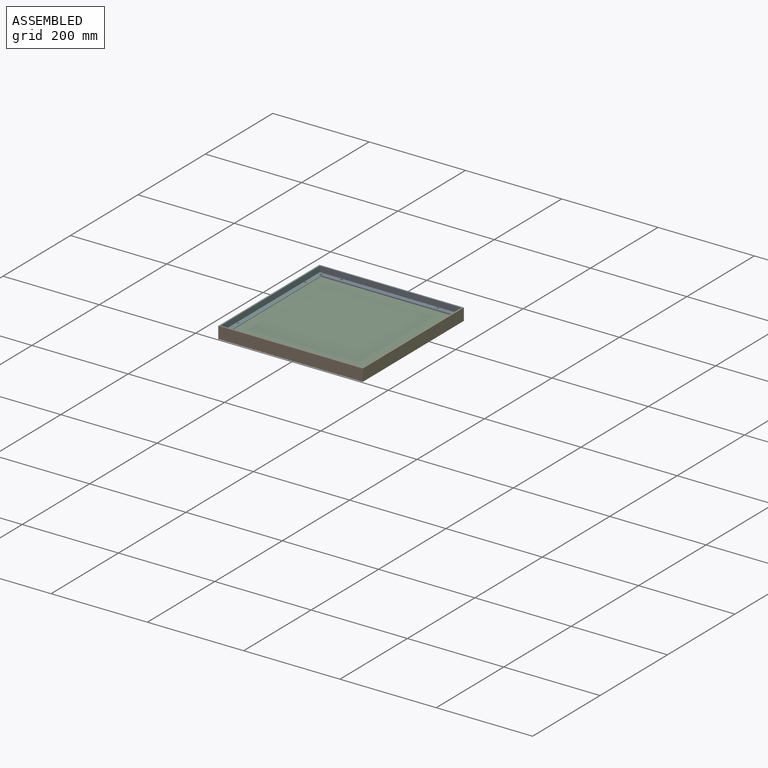
[diagram: assembled view]
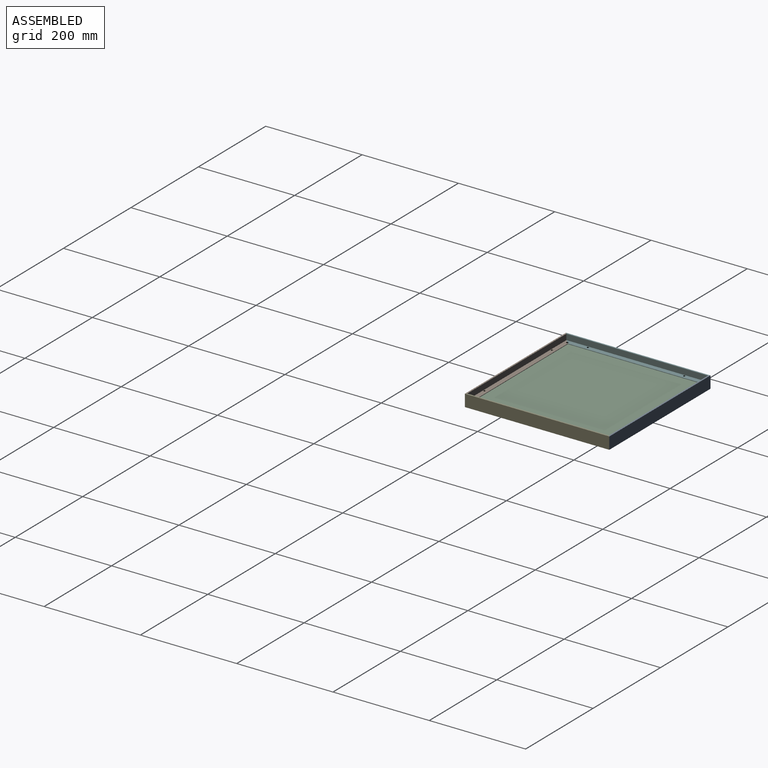
[diagram: assembled view, second angle]
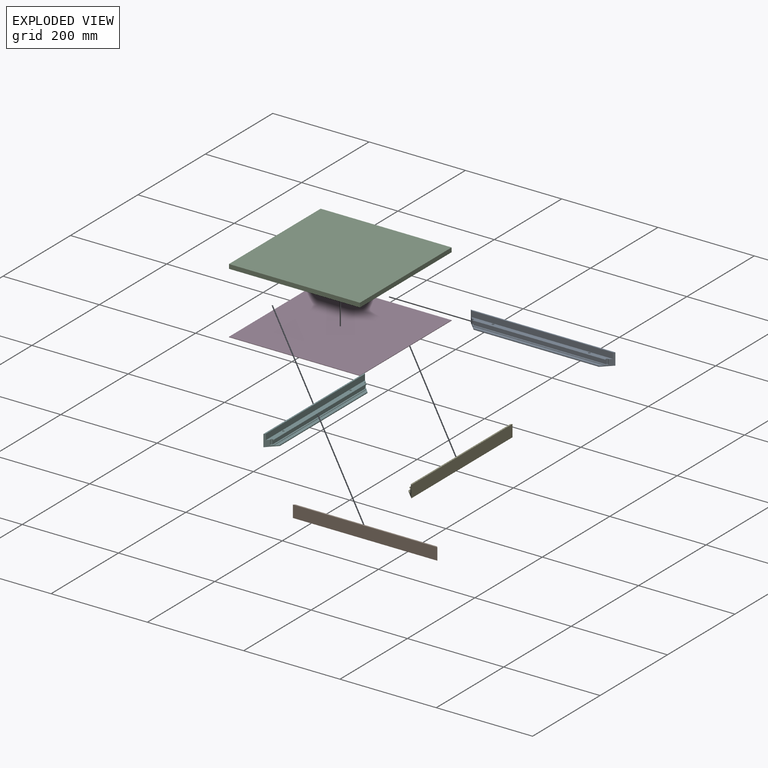
[diagram: exploded view]
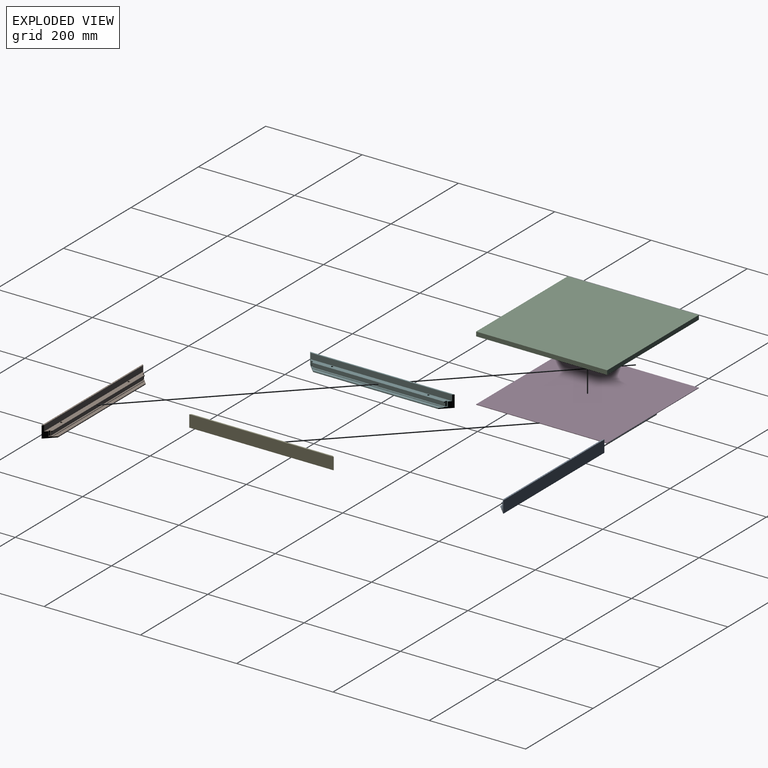
[diagram: exploded view, second angle]
ASSEMBLY  parts=6 mates=5
PART A: 22 faces, bbox 20x300x25 mm
  f0: plane 2x1.23mm, normal (0.71,-0.71,0), area 3.5mm2, adj f8,f9,f10,f16
  f1: plane 300x25mm, normal (-1,0,0), area 7500mm2, adj f2,f12,f15,f20
  f2: plane 300x20mm, normal (0,0,-1), area 5600mm2, adj f1,f3,f15,f20
  f3: plane 260x2mm, normal (1,0,0), area 520mm2, adj f2,f4,f15,f20
  f4: plane 274x7mm, normal (0,0,1), area 1869mm2, adj f3,f5,f15,f20
  f5: plane 274x1mm, normal (1,0,0), area 274mm2, adj f4,f6,f15,f20
  f6: plane 283.54x5.5mm, normal (0,0,1), area 845.7mm2, adj f5,f7,f15,f16,f20,f21
  f7: plane 275x8mm, normal (1,0,0), area 2200mm2, adj f6,f8,f16,f21
  f8: plane 276.46x3mm, normal (0,0,-1), area 826.1mm2, adj f0,f7,f9,f16,f17,f21
  f9: plane 274x2mm, normal (1,0,0), area 548mm2, adj f0,f8,f10,f17
  f10: plane 294x10mm, normal (0,0,1), area 2790mm2, adj f0,f9,f11,f14,f15,f16,f17,f19
  f11: plane 294x12mm, normal (1,0,0), area 3528mm2, adj f10,f12,f15,f20
  f12: plane 300x3mm, normal (0,0,1), area 891mm2, adj f1,f11,f15,f20
  f13: cone r=0mm half-angle=59deg, axis (0,0,1), area 17.7mm2, adj f14
  f14: cylinder r=2.2mm len=10.4mm, axis (0,0,1), area 143.8mm2, adj f10,f13
  f15: plane 25x20mm, normal (0.71,-0.71,0), area 242.3mm2, adj f1,f2,f3,f4,f5,f6,f10,f11
  f16: cylinder r=2.5mm len=10mm, axis (0,0,-1), area 62.8mm2, adj f0,f6,f7,f8,f10,f15
  f17: plane 2x1.23mm, normal (0.71,0.71,0), area 3.5mm2, adj f8,f9,f10,f21
  f18: cone r=0mm half-angle=59deg, axis (0,0,1), area 17.7mm2, adj f19
  f19: cylinder r=2.2mm len=10.4mm, axis (0,0,1), area 143.8mm2, adj f10,f18
  f20: plane 25x20mm, normal (0.71,0.71,0), area 242.3mm2, adj f1,f2,f3,f4,f5,f6,f10,f11
  f21: cylinder r=2.5mm len=10mm, axis (0,0,-1), area 62.8mm2, adj f6,f7,f8,f10,f17,f20
PART B: same geometry as A
PART C: 6 faces, bbox 272x272x9 mm
  f0: plane 272x9mm, normal (1,0,0), area 2448mm2, adj f1,f3,f4,f5
  f1: plane 272x9mm, normal (0,1,0), area 2448mm2, adj f0,f2,f4,f5
  f2: plane 272x9mm, normal (-1,0,0), area 2448mm2, adj f1,f3,f4,f5
  f3: plane 272x9mm, normal (0,-1,0), area 2448mm2, adj f0,f2,f4,f5
  f4: plane 272x272mm, normal (0,0,-1), area 73984mm2, adj f0,f1,f2,f3
  f5: plane 272x272mm, normal (0,0,1), area 73984mm2, adj f0,f1,f2,f3
PART D: 6 faces, bbox 272x272x1 mm
  f0: plane 272x1mm, normal (1,0,0), area 272mm2, adj f1,f3,f4,f5
  f1: plane 272x1mm, normal (0,-1,0), area 272mm2, adj f0,f2,f4,f5
  f2: plane 272x1mm, normal (-1,0,0), area 272mm2, adj f1,f3,f4,f5
  f3: plane 272x1mm, normal (0,1,0), area 272mm2, adj f0,f2,f4,f5
  f4: plane 272x272mm, normal (0,0,-1), area 73984mm2, adj f0,f1,f2,f3
  f5: plane 272x272mm, normal (0,0,1), area 73984mm2, adj f0,f1,f2,f3
PART E: same geometry as A
PART F: same geometry as A
PLACE A rot(axis=(0,0,-1),90deg) t=(26.92,247.48,-84.07)mm
PLACE B rot(axis=(0,0,1),90deg) t=(26.92,-32.52,-84.07)mm
PLACE C t=(25.92,106.48,-92.07)mm
PLACE D t=(25.92,106.48,-92.07)mm
PLACE E rot(axis=(0,0,-1),180deg) t=(166.92,107.48,-84.07)mm
PLACE F t=(-113.08,107.48,-84.07)mm
MATE fastened E.f15 <-> A.f20  axis (-0.71,0.71,0) through (171.8,252.36,-86.81)mm
MATE fastened A.f15 <-> F.f20  axis (-0.71,-0.71,0) through (-117.96,252.36,-86.81)mm
MATE fastened F.f15 <-> B.f20  axis (0.71,-0.71,0) through (-117.96,-37.39,-86.81)mm
MATE fastened D.f4 <-> F.f4  axis (0,0,1) through (-110.08,-29.52,-93.07)mm
MATE fastened C.f4 <-> D.f5  axis (0,0,-1) through (25.92,106.48,-92.07)mm
